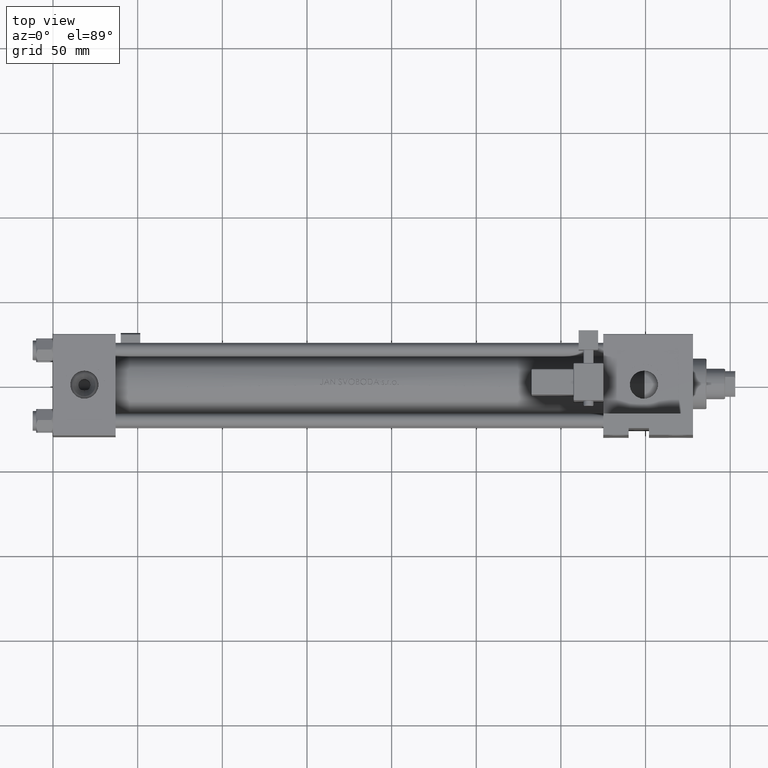
[diagram: clean part render]
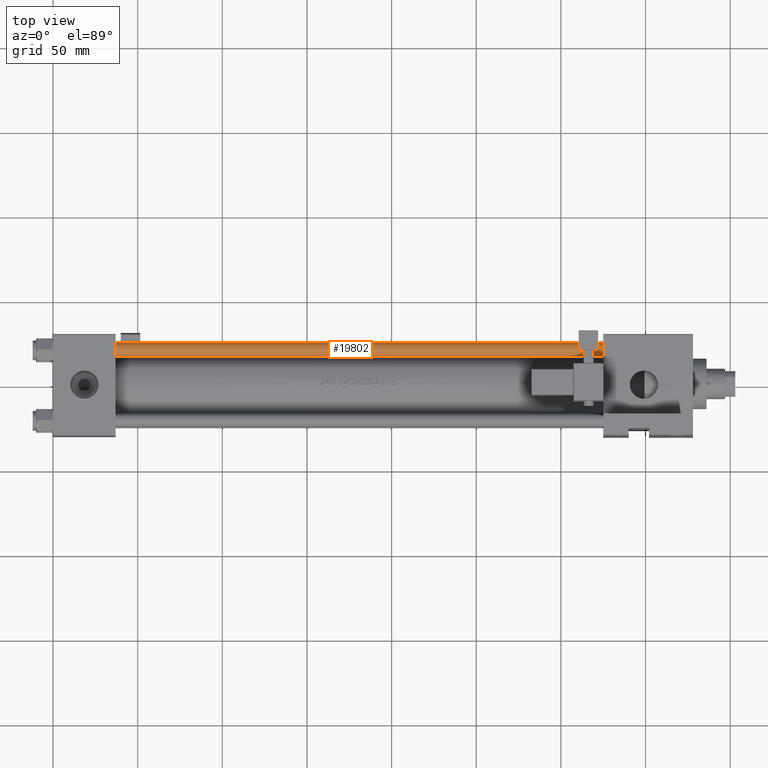
[diagram: same view with one face highlighted and labeled with its STEP entity id]
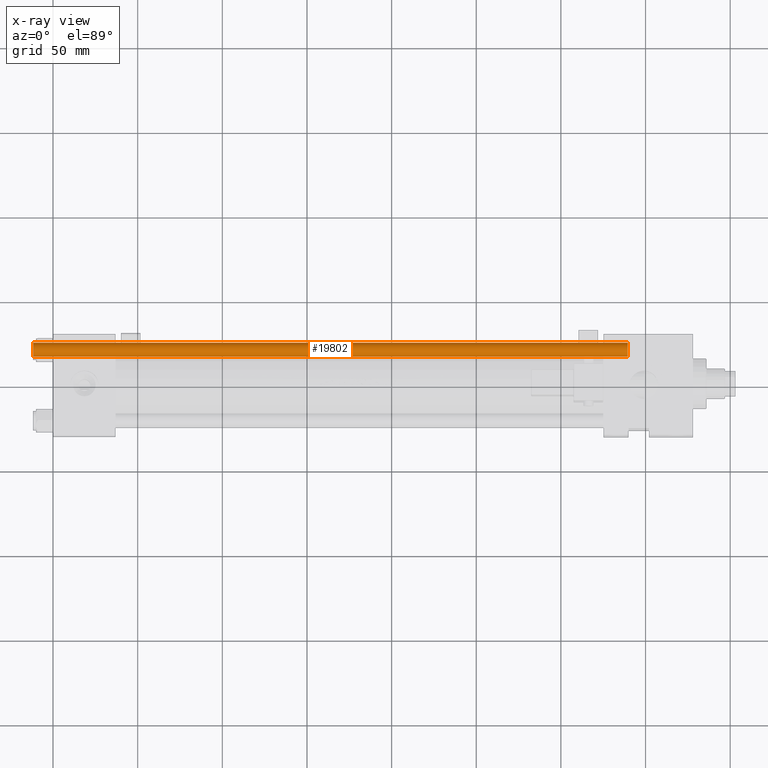
[diagram: x-ray of the same camera — body ghosted, the highlighted face saturated]
A machine part, top view. The second image highlights one B-rep face of the part: STEP entity #19802.
The next image is the same camera in x-ray: the body ghosted, the highlighted face saturated — about 0% of this face is hidden behind the body in this view.
In plain terms, the highlighted cylindrical surface (edge-blend (fillet) strip) has radius 4 mm, axis along (1, -0, 0).
Its self-contained STEP definition (entity closure, byte-faithful):
#342 = DIRECTION ( 'NONE',  ( -0.000000000000000000, -0.000000000000000000, -1.000000000000000000 ) ) ;
#606 = ORIENTED_EDGE ( 'NONE', *, *, #31839, .T. ) ;
#1314 = CARTESIAN_POINT ( 'NONE',  ( 4.000000000000000000, 4.898587196589412829E-16, 351.5000000000000000 ) ) ;
#1470 = VECTOR ( 'NONE', #342, 1000.000000000000000 ) ;
#2619 = VERTEX_POINT ( 'NONE', #42510 ) ;
#4030 = CYLINDRICAL_SURFACE ( 'NONE', #37157, 4.000000000000000000 ) ;
#8956 = DIRECTION ( 'NONE',  ( 0.000000000000000000, 0.000000000000000000, -1.000000000000000000 ) ) ;
#10516 = VERTEX_POINT ( 'NONE', #42845 ) ;
#11789 = VECTOR ( 'NONE', #48219, 1000.000000000000000 ) ;
#11986 = DIRECTION ( 'NONE',  ( -1.000000000000000000, 0.000000000000000000, 0.000000000000000000 ) ) ;
#13888 = DIRECTION ( 'NONE',  ( -0.000000000000000000, -0.000000000000000000, 1.000000000000000000 ) ) ;
#15374 = VERTEX_POINT ( 'NONE', #18604 ) ;
#15483 = EDGE_CURVE ( 'NONE', #2619, #15374, #26809, .T. ) ;
#18571 = AXIS2_PLACEMENT_3D ( 'NONE', #24727, #13888, #41020 ) ;
#18604 = CARTESIAN_POINT ( 'NONE',  ( 4.000000000000000000, 4.898587196589412829E-16, 0.5000000000000004441 ) ) ;
#18645 = EDGE_CURVE ( 'NONE', #50253, #15374, #50858, .T. ) ;
#19717 = FACE_OUTER_BOUND ( 'NONE', #31598, .T. ) ;
#19802 = ADVANCED_FACE ( 'NONE', ( #19717 ), #4030, .T. ) ;
#21080 = DIRECTION ( 'NONE',  ( 1.000000000000000000, 0.000000000000000000, 0.000000000000000000 ) ) ;
#22707 = CIRCLE ( 'NONE', #46516, 4.000000000000000000 ) ;
#24727 = CARTESIAN_POINT ( 'NONE',  ( 0.000000000000000000, 0.000000000000000000, 0.5000000000000004441 ) ) ;
#25000 = CARTESIAN_POINT ( 'NONE',  ( -4.000000000000000000, 0.000000000000000000, 352.0000000000000000 ) ) ;
#25734 = EDGE_CURVE ( 'NONE', #10516, #2619, #40767, .T. ) ;
#26809 = CIRCLE ( 'NONE', #18571, 4.000000000000000000 ) ;
#27468 = CARTESIAN_POINT ( 'NONE',  ( 0.000000000000000000, 0.000000000000000000, 352.0000000000000000 ) ) ;
#31598 = EDGE_LOOP ( 'NONE', ( #43554, #606, #34606, #40269 ) ) ;
#31839 = EDGE_CURVE ( 'NONE', #50253, #10516, #22707, .T. ) ;
#34606 = ORIENTED_EDGE ( 'NONE', *, *, #25734, .T. ) ;
#37157 = AXIS2_PLACEMENT_3D ( 'NONE', #27468, #47059, #11986 ) ;
#40269 = ORIENTED_EDGE ( 'NONE', *, *, #15483, .T. ) ;
#40767 = LINE ( 'NONE', #25000, #11789 ) ;
#41020 = DIRECTION ( 'NONE',  ( 1.000000000000000000, 0.000000000000000000, 0.000000000000000000 ) ) ;
#42510 = CARTESIAN_POINT ( 'NONE',  ( -4.000000000000000000, 0.000000000000000000, 0.5000000000000004441 ) ) ;
#42845 = CARTESIAN_POINT ( 'NONE',  ( -4.000000000000000000, 0.000000000000000000, 351.5000000000000000 ) ) ;
#43554 = ORIENTED_EDGE ( 'NONE', *, *, #18645, .F. ) ;
#46516 = AXIS2_PLACEMENT_3D ( 'NONE', #48934, #8956, #21080 ) ;
#46986 = CARTESIAN_POINT ( 'NONE',  ( 4.000000000000000000, 4.898587196589412829E-16, 352.0000000000000000 ) ) ;
#47059 = DIRECTION ( 'NONE',  ( -0.000000000000000000, -0.000000000000000000, -1.000000000000000000 ) ) ;
#48219 = DIRECTION ( 'NONE',  ( -0.000000000000000000, -0.000000000000000000, -1.000000000000000000 ) ) ;
#48934 = CARTESIAN_POINT ( 'NONE',  ( 0.000000000000000000, 0.000000000000000000, 351.5000000000000000 ) ) ;
#50253 = VERTEX_POINT ( 'NONE', #1314 ) ;
#50858 = LINE ( 'NONE', #46986, #1470 ) ;